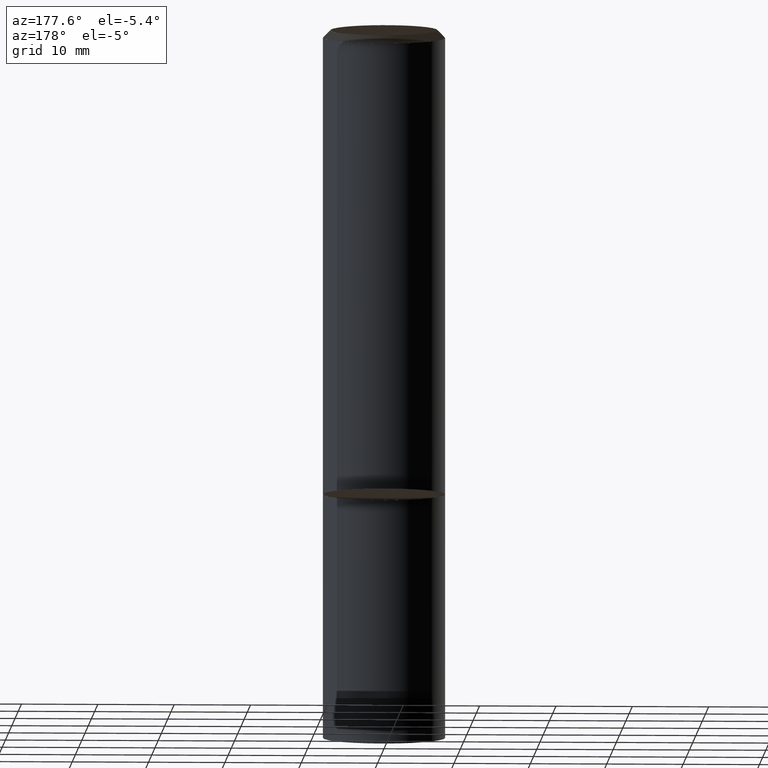
[diagram: clean part render]
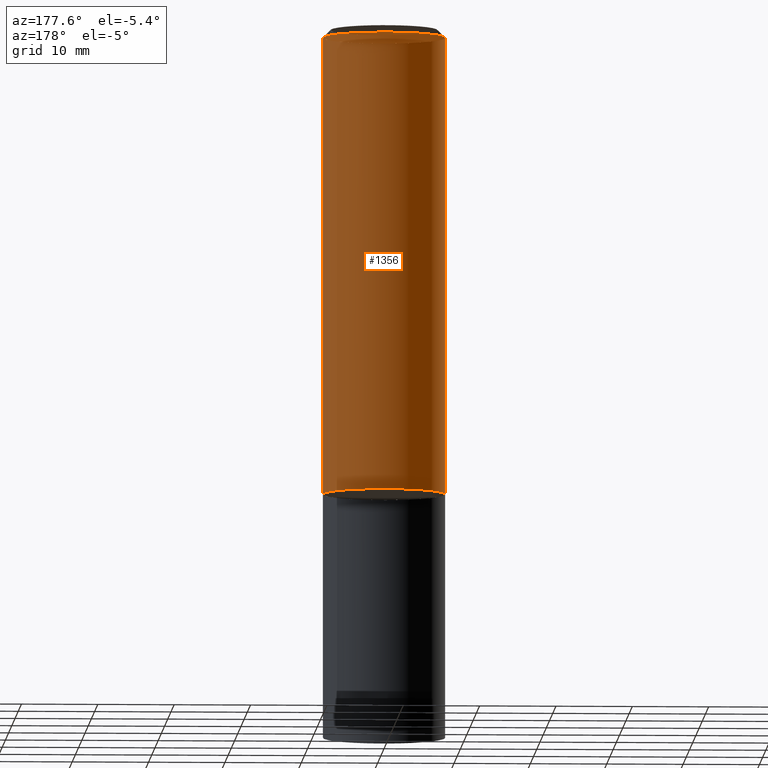
[diagram: same view with one face highlighted and labeled with its STEP entity id]
A machine part, auxiliary view. The second image highlights one B-rep face of the part: STEP entity #1356.
In plain terms, the highlighted face is a freeform B-spline surface patch.
Its self-contained STEP definition (entity closure, byte-faithful):
#1179=CARTESIAN_POINT('',(8.0,0.0,0.0));
#1180=CARTESIAN_POINT('',(8.0,8.0,0.0));
#1181=CARTESIAN_POINT('',(0.0,8.0,0.0));
#1182=CARTESIAN_POINT('',(-8.0,8.0,0.0));
#1183=CARTESIAN_POINT('',(-8.0,0.0,0.0));
#1190=CARTESIAN_POINT('',(8.0,0.0,60.0));
#1191=CARTESIAN_POINT('',(8.0,8.0,60.0));
#1192=CARTESIAN_POINT('',(0.0,8.0,60.0));
#1193=CARTESIAN_POINT('',(-8.0,8.0,60.0));
#1194=CARTESIAN_POINT('',(-8.0,0.0,60.0));
#1337=(
BOUNDED_SURFACE()
B_SPLINE_SURFACE(1,2,(
(#1179,#1180,#1181,#1182,#1183),
(#1190,#1191,#1192,#1193,#1194)
), .UNSPECIFIED.,.F.,.F.,.F.)
B_SPLINE_SURFACE_WITH_KNOTS((2,2),(3,2,3),(
0.0,1.0),(
0.0,0.5,1.0), .UNSPECIFIED.)
GEOMETRIC_REPRESENTATION_ITEM()
RATIONAL_B_SPLINE_SURFACE(((1.0,0.707106781187,1.0,0.707106781187,1.0),
(1.0,0.707106781187,1.0,0.707106781187,1.0)
))
REPRESENTATION_ITEM('')
SURFACE()
);
#1338=(
BOUNDED_CURVE()
B_SPLINE_CURVE(2,(#1183,#1182,#1181,#1180,#1179),.UNSPECIFIED.,.F.,.F.)
B_SPLINE_CURVE_WITH_KNOTS((3,2,3),
(0.0,0.5,1.0),.UNSPECIFIED.)
CURVE()
GEOMETRIC_REPRESENTATION_ITEM()
RATIONAL_B_SPLINE_CURVE((1.0,0.707106781187,1.0,0.707106781187,1.0))
REPRESENTATION_ITEM('')
);
#1339=(
BOUNDED_CURVE()
B_SPLINE_CURVE(1,(#1179,#1190),.UNSPECIFIED.,.F.,.F.)
B_SPLINE_CURVE_WITH_KNOTS((2,2),
(0.0,1.0),.UNSPECIFIED.)
CURVE()
GEOMETRIC_REPRESENTATION_ITEM()
RATIONAL_B_SPLINE_CURVE((1.0,1.0))
REPRESENTATION_ITEM('')
);
#1340=(
BOUNDED_CURVE()
B_SPLINE_CURVE(2,(#1190,#1191,#1192,#1193,#1194),.UNSPECIFIED.,.F.,.F.)
B_SPLINE_CURVE_WITH_KNOTS((3,2,3),
(0.0,0.5,1.0),.UNSPECIFIED.)
CURVE()
GEOMETRIC_REPRESENTATION_ITEM()
RATIONAL_B_SPLINE_CURVE((1.0,0.707106781187,1.0,0.707106781187,1.0))
REPRESENTATION_ITEM('')
);
#1341=(
BOUNDED_CURVE()
B_SPLINE_CURVE(1,(#1194,#1183),.UNSPECIFIED.,.F.,.F.)
B_SPLINE_CURVE_WITH_KNOTS((2,2),
(0.0,1.0),.UNSPECIFIED.)
CURVE()
GEOMETRIC_REPRESENTATION_ITEM()
RATIONAL_B_SPLINE_CURVE((1.0,1.0))
REPRESENTATION_ITEM('')
);
#1342=VERTEX_POINT('',#1179);
#1343=VERTEX_POINT('',#1183);
#1344=VERTEX_POINT('',#1190);
#1345=VERTEX_POINT('',#1194);
#1346=EDGE_CURVE('',#1343,#1342,#1338,.T.);
#1347=EDGE_CURVE('',#1342,#1344,#1339,.T.);
#1348=EDGE_CURVE('',#1344,#1345,#1340,.T.);
#1349=EDGE_CURVE('',#1345,#1343,#1341,.T.);
#1350=ORIENTED_EDGE('',*,*,#1346,.T.);
#1351=ORIENTED_EDGE('',*,*,#1347,.T.);
#1352=ORIENTED_EDGE('',*,*,#1348,.T.);
#1353=ORIENTED_EDGE('',*,*,#1349,.T.);
#1354=EDGE_LOOP('',(#1350,#1351,#1352,#1353));
#1355=FACE_OUTER_BOUND('',#1354,.T.);
#1356=ADVANCED_FACE('',(#1355),#1337,.T.);